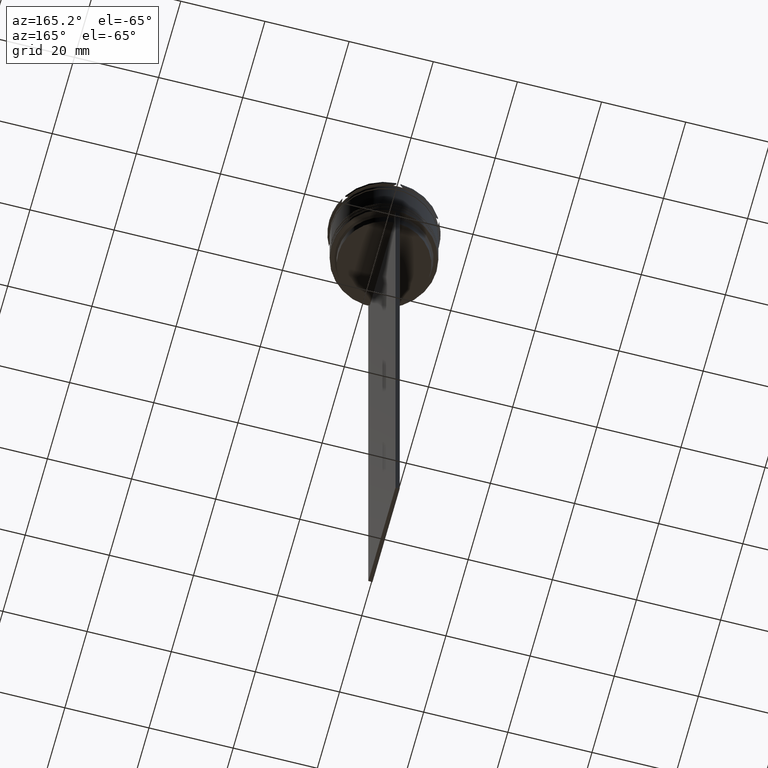
[diagram: clean part render]
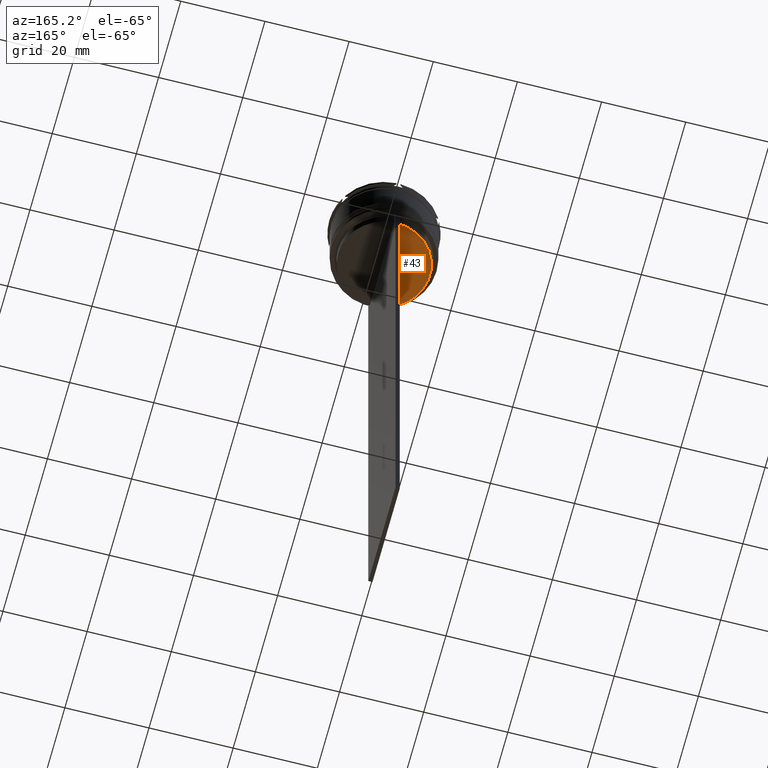
[diagram: same view with one face highlighted and labeled with its STEP entity id]
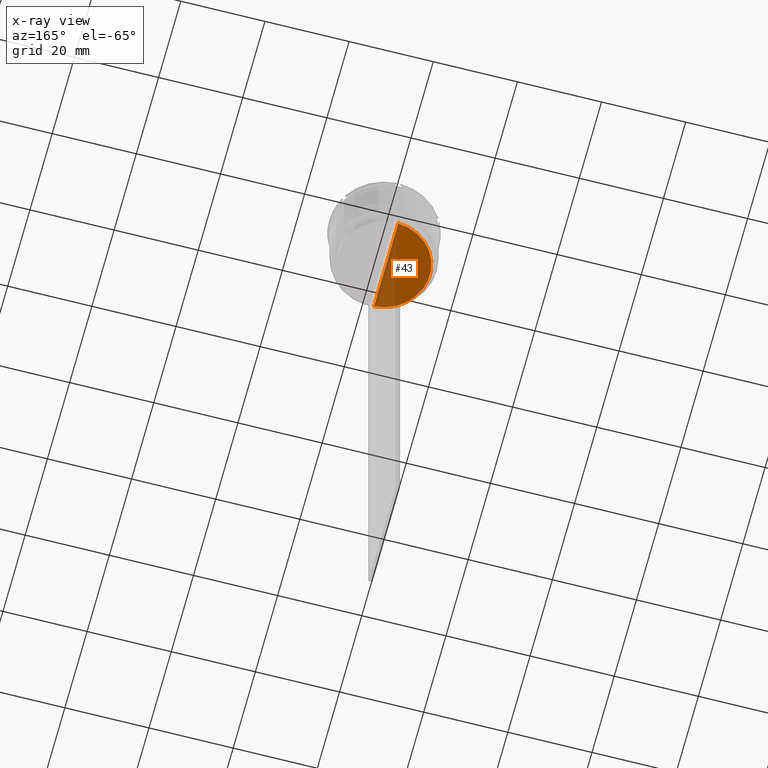
[diagram: x-ray of the same camera — body ghosted, the highlighted face saturated]
A machine part, auxiliary view. The second image highlights one B-rep face of the part: STEP entity #43.
The next image is the same camera in x-ray: the body ghosted, the highlighted face saturated — about 29% of this face is hidden behind the body in this view.
In plain terms, the highlighted planar face has unit normal (0, -0, 1).
Its self-contained STEP definition (entity closure, byte-faithful):
#43 = ADVANCED_FACE ( 'NONE', ( #1309 ), #698, .F. ) ;
#284 = VERTEX_POINT ( 'NONE', #1916 ) ;
#417 = ORIENTED_EDGE ( 'NONE', *, *, #1081, .T. ) ;
#697 = AXIS2_PLACEMENT_3D ( 'NONE', #2049, #1863, #2457 ) ;
#698 = PLANE ( 'NONE',  #1100 ) ;
#721 = ORIENTED_EDGE ( 'NONE', *, *, #737, .F. ) ;
#737 = EDGE_CURVE ( 'NONE', #284, #2007, #2459, .T. ) ;
#949 = EDGE_LOOP ( 'NONE', ( #721, #417 ) ) ;
#1081 = EDGE_CURVE ( 'NONE', #284, #2007, #1359, .T. ) ;
#1100 = AXIS2_PLACEMENT_3D ( 'NONE', #1769, #1962, #1979 ) ;
#1309 = FACE_OUTER_BOUND ( 'NONE', #949, .T. ) ;
#1359 = LINE ( 'NONE', #2319, #1969 ) ;
#1769 = CARTESIAN_POINT ( 'NONE',  ( 0.000000000000000000, 10.90000000000000213, -17.00000000000000000 ) ) ;
#1828 = CARTESIAN_POINT ( 'NONE',  ( -0.4999999999999997780, -10.88852607105296144, -17.00000000000000000 ) ) ;
#1863 = DIRECTION ( 'NONE',  ( -0.000000000000000000, -0.000000000000000000, 1.000000000000000000 ) ) ;
#1916 = CARTESIAN_POINT ( 'NONE',  ( -0.4999999999999997780, 10.88852607105296144, -17.00000000000000000 ) ) ;
#1962 = DIRECTION ( 'NONE',  ( 0.000000000000000000, -0.000000000000000000, 1.000000000000000000 ) ) ;
#1969 = VECTOR ( 'NONE', #2743, 1000.000000000000000 ) ;
#1979 = DIRECTION ( 'NONE',  ( 1.000000000000000000, 0.000000000000000000, 0.000000000000000000 ) ) ;
#2007 = VERTEX_POINT ( 'NONE', #1828 ) ;
#2049 = CARTESIAN_POINT ( 'NONE',  ( 0.000000000000000000, 0.000000000000000000, -17.00000000000000000 ) ) ;
#2319 = CARTESIAN_POINT ( 'NONE',  ( -0.4999999999999997780, 10.90000000000000213, -17.00000000000000000 ) ) ;
#2457 = DIRECTION ( 'NONE',  ( 1.000000000000000000, 0.000000000000000000, 0.000000000000000000 ) ) ;
#2459 = CIRCLE ( 'NONE', #697, 10.90000000000000213 ) ;
#2743 = DIRECTION ( 'NONE',  ( 0.000000000000000000, -1.000000000000000000, 0.000000000000000000 ) ) ;